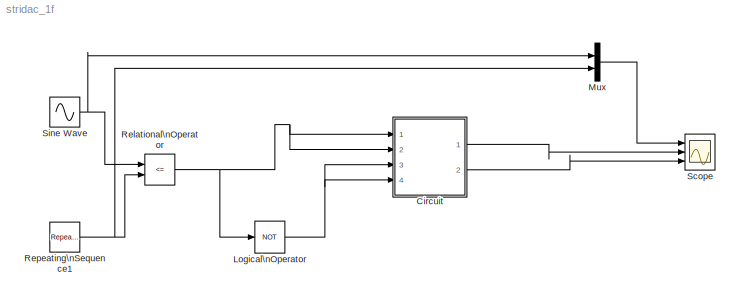
MODEL stridac_1f
KIND model
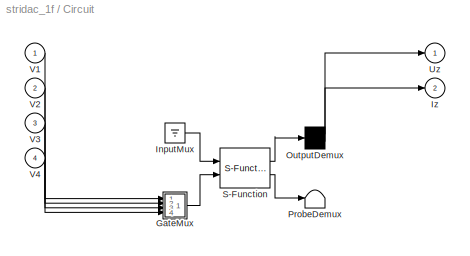
BLOCK [SubSystem] Circuit
  CopyFcn = plecsedit('sl', 203);
  DeleteFcn = plecsedit('sl', 205);
  DestroyFcn = plecsedit('sl', 207);
  ErrorFcn = plerrorfcn
  FunctionWithSeparateData = off
  InitFcn = plecsedit('sl', 214);
  LoadFcn = plecsedit('sl', 200);
  MaskHideContents = off
  MinAlgLoopOccurrences = off
  NameChangeFcn = plecsedit('sl', 210);
  Opaque = off
  OpenFcn = plecsedit('sl', 202);
  Ports = [4, 2]
  PostSaveFcn = plecsedit('sl', 201);
  PreCopyFcn = plecsedit('sl', 216);
  PreSaveFcn = plecsedit('sl', 211);
  PropExecContextOutsideSubsystem = off
  RTWSystemCode = Auto
  RequestExecContextInheritance = off
  SID = 1
  StartFcn = plecsedit('sl', 208);
  StopFcn = plecsedit('sl', 209);
  UndoDeleteFcn = plecsedit('sl', 206);
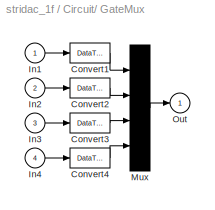
BLOCK [SubSystem] Circuit/ GateMux 
  FunctionWithSeparateData = off
  MaskHideContents = off
  MinAlgLoopOccurrences = off
  Opaque = off
  Ports = [4, 1]
  PropExecContextOutsideSubsystem = off
  RTWSystemCode = Auto
  RequestExecContextInheritance = off
  SID = 1:74
BLOCK [DataTypeConversion] Circuit/ GateMux /Convert1
  SID = 1:78
BLOCK [DataTypeConversion] Circuit/ GateMux /Convert2
  SID = 1:80
BLOCK [DataTypeConversion] Circuit/ GateMux /Convert3
  SID = 1:82
BLOCK [DataTypeConversion] Circuit/ GateMux /Convert4
  SID = 1:84
BLOCK [Inport] Circuit/ GateMux /In1
  IconDisplay = Port number
  SID = 1:77
BLOCK [Inport] Circuit/ GateMux /In2
  IconDisplay = Port number
  Port = 2
  SID = 1:79
BLOCK [Inport] Circuit/ GateMux /In3
  IconDisplay = Port number
  Port = 3
  SID = 1:81
BLOCK [Inport] Circuit/ GateMux /In4
  IconDisplay = Port number
  Port = 4
  SID = 1:83
BLOCK [Mux] Circuit/ GateMux /Mux
  Inputs = [ 1 1 1 1 ]
  Ports = [4, 1]
  SID = 1:76
BLOCK [Outport] Circuit/ GateMux /Out
  IconDisplay = Port number
  SID = 1:75
BLOCK [Ground] Circuit/ InputMux 
  SID = 1:2
BLOCK [Demux] Circuit/ OutputDemux 
  Outputs = [ 1 1 ]
  Ports = [1, 2]
  SID = 1:13
BLOCK [Terminator] Circuit/ ProbeDemux 
  SID = 1:4
BLOCK [S-Function] Circuit/ S-Function 
  EnableBusSupport = off
  FunctionName = plecsedit
  Ports = [2, 2]
  SID = 1:5
BLOCK [Outport] Circuit/Iz
  IconDisplay = Port number
  Port = 2
  PortDimensions = 1
  SID = 1:23
BLOCK [Outport] Circuit/Uz
  IconDisplay = Port number
  PortDimensions = 1
  SID = 1:22
BLOCK [Inport] Circuit/V1
  IconDisplay = Port number
  PortDimensions = 1
  SID = 1:6
BLOCK [Inport] Circuit/V2
  IconDisplay = Port number
  Port = 2
  PortDimensions = 1
  SID = 1:14
BLOCK [Inport] Circuit/V3
  IconDisplay = Port number
  Port = 3
  PortDimensions = 1
  SID = 1:42
BLOCK [Inport] Circuit/V4
  IconDisplay = Port number
  Port = 4
  PortDimensions = 1
  SID = 1:73
BLOCK [Logic] Logical\nOperator
  AllPortsSameDT = off
  Operator = NOT
  OutDataTypeStr = boolean
  Ports = [1, 1]
  SID = 12
BLOCK [Mux] Mux
  DisplayOption = bar
  Inputs = 2
  Ports = [2, 1]
  SID = 25
BLOCK [RelationalOperator] Relational\nOperator
  InputSameDT = off
  Operator = <=
  OutDataTypeStr = boolean
  Ports = [2, 1]
  SID = 15
BLOCK [Reference] Repeating\nSequence1  REF=simulink/Sources/Repeating\nSequence
  Ports = [0, 1]
  SID = 24
  SourceBlock = simulink/Sources/Repeating\nSequence
  SourceType = Repeating table
  rep_seq_t = [0 0.5 1]/500
  rep_seq_y = [-1 1 -1]
BLOCK [Scope] Scope
  DataFormat = StructureWithTime
  Floating = off
  LimitDataPoints = off
  NumInputPorts = 3
  Ports = [3]
  SID = 7
  SampleTime = 0
  ShowLegends = off
  YMax = 5~5~5
  YMin = -5~-5~-5
  ZoomMode = xonly
BLOCK [Sin] Sine Wave
  Frequency = 50
  Ports = [0, 1]
  SID = 23
  SampleTime = 0
LINE Circuit/ GateMux /Convert1:1 -> Circuit/ GateMux /Mux:1
LINE Circuit/ GateMux /Convert2:1 -> Circuit/ GateMux /Mux:2
LINE Circuit/ GateMux /Convert3:1 -> Circuit/ GateMux /Mux:3
LINE Circuit/ GateMux /Convert4:1 -> Circuit/ GateMux /Mux:4
LINE Circuit/ GateMux /In1:1 -> Circuit/ GateMux /Convert1:1
LINE Circuit/ GateMux /In2:1 -> Circuit/ GateMux /Convert2:1
LINE Circuit/ GateMux /In3:1 -> Circuit/ GateMux /Convert3:1
LINE Circuit/ GateMux /In4:1 -> Circuit/ GateMux /Convert4:1
LINE Circuit/ GateMux /Mux:1 -> Circuit/ GateMux /Out:1
LINE Circuit/ GateMux :1 -> Circuit/ S-Function :2
LINE Circuit/ InputMux :1 -> Circuit/ S-Function :1
LINE Circuit/ OutputDemux :1 -> Circuit/Uz:1
LINE Circuit/ OutputDemux :2 -> Circuit/Iz:1
LINE Circuit/ S-Function :1 -> Circuit/ OutputDemux :1
LINE Circuit/ S-Function :2 -> Circuit/ ProbeDemux :1
LINE Circuit/V1:1 -> Circuit/ GateMux :1
LINE Circuit/V2:1 -> Circuit/ GateMux :2
LINE Circuit/V3:1 -> Circuit/ GateMux :3
LINE Circuit/V4:1 -> Circuit/ GateMux :4
LINE Circuit:1 -> Scope:2
LINE Circuit:2 -> Scope:3
NET Logical\nOperator:1 -> Circuit:3, Circuit:4
LINE Mux:1 -> Scope:1
NET Relational\nOperator:1 -> Circuit:1, Circuit:2, Logical\nOperator:1
NET Repeating\nSequence1:1 -> Mux:2, Relational\nOperator:2
NET Sine Wave:1 -> Mux:1, Relational\nOperator:1
note: NET lines group one-source signal fan-out (src -> all destinations, sorted); 1:1 wires keep LINE
